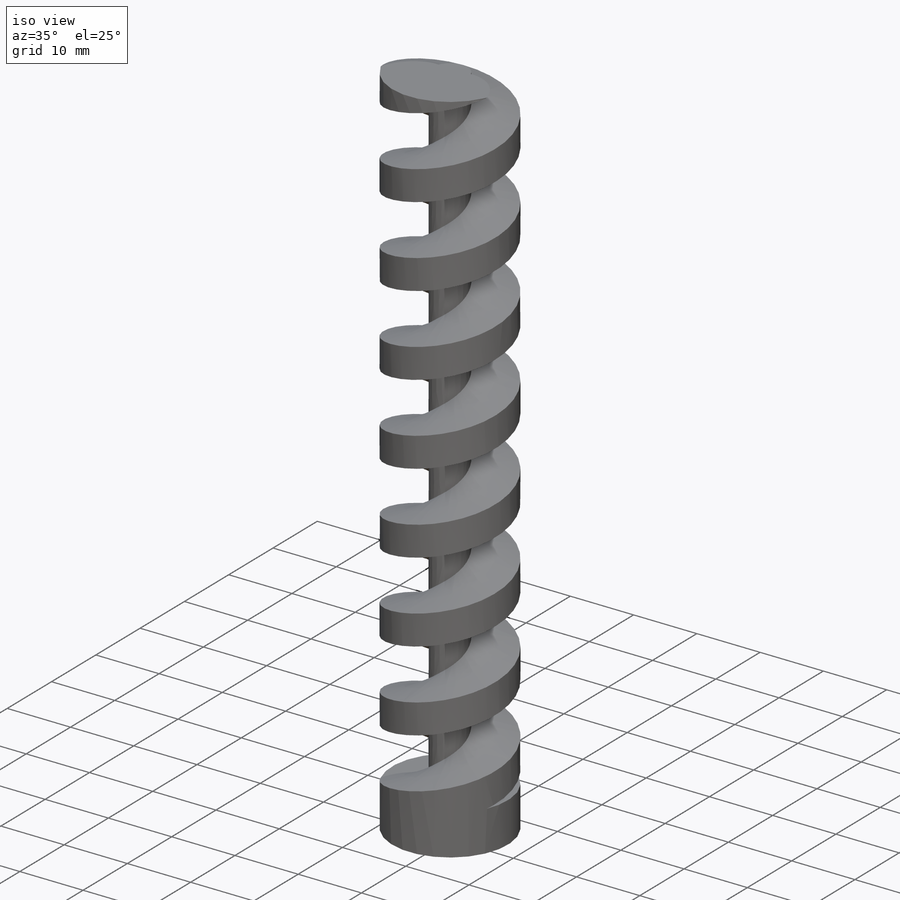
[diagram: iso view]
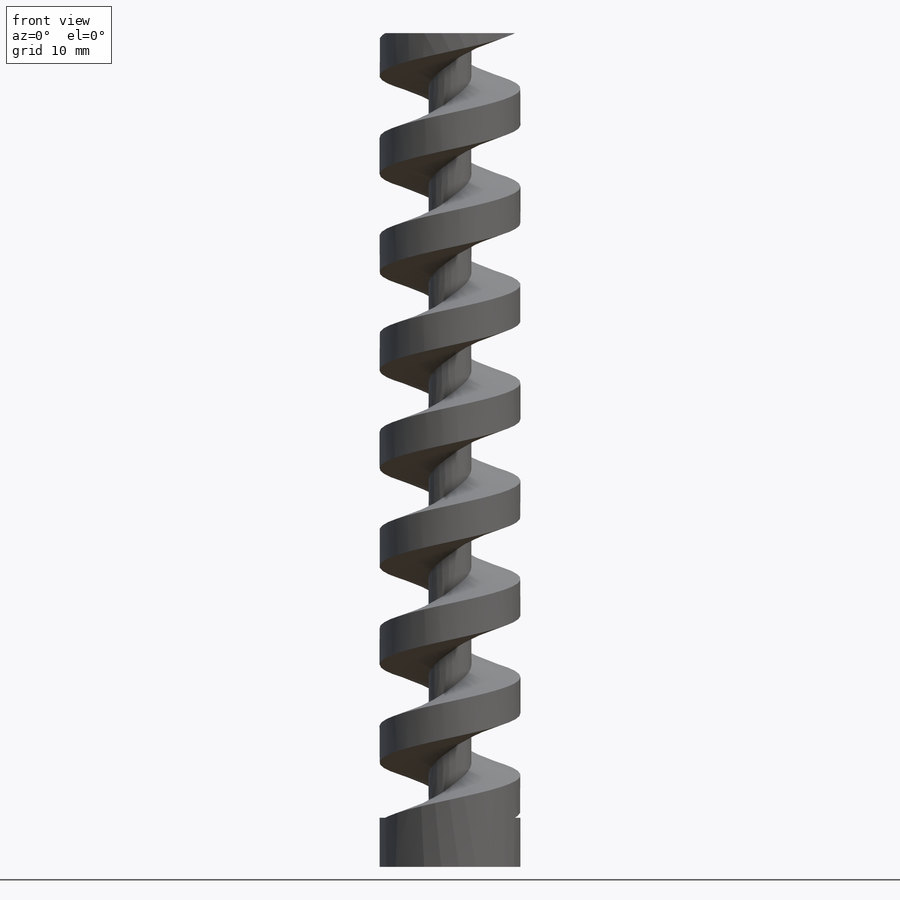
[diagram: front view]
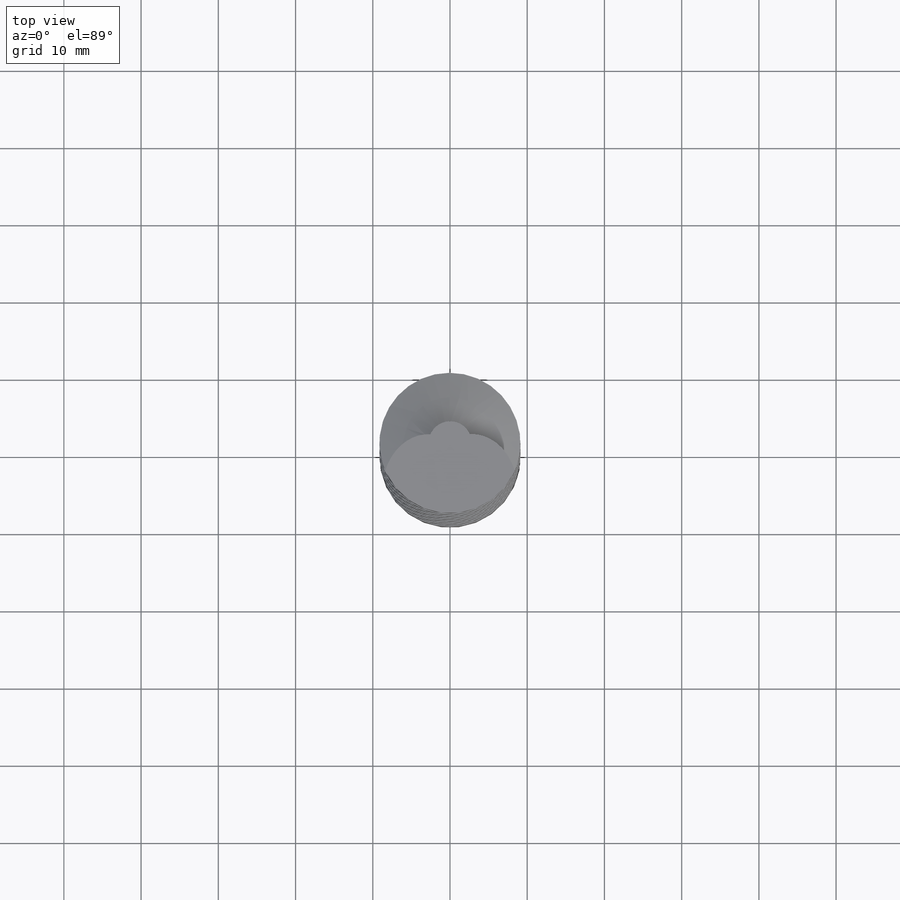
[diagram: top view]
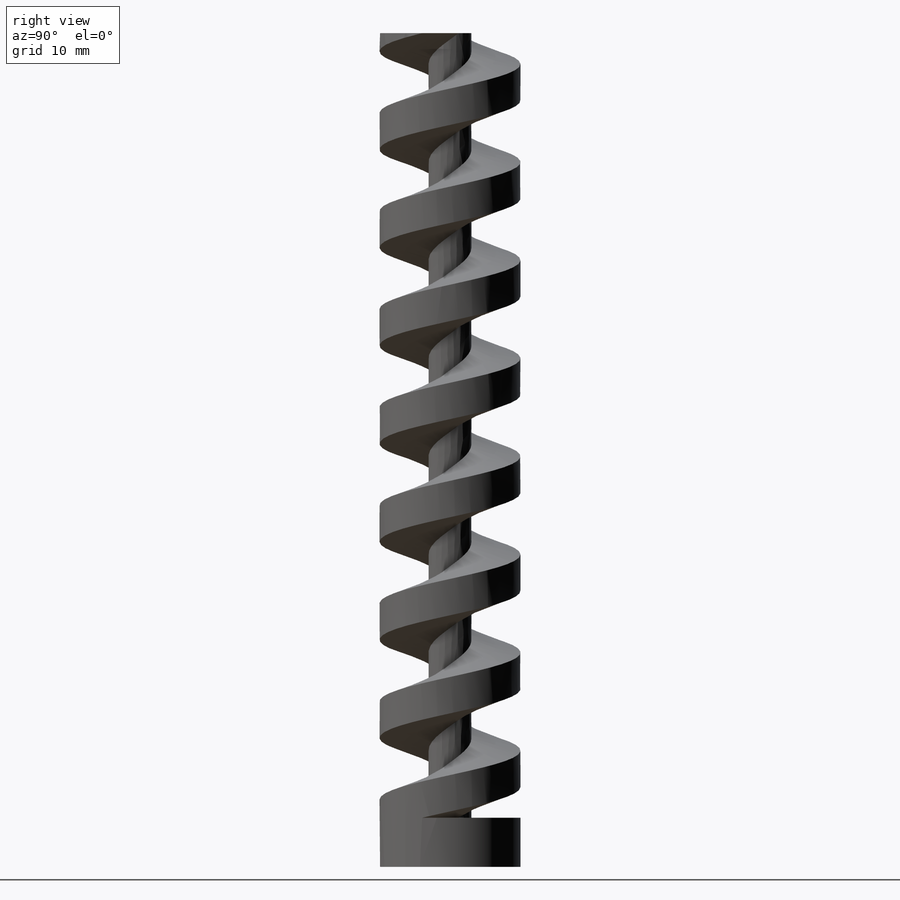
[diagram: right view]
SOLIDWORKS PART (.sldprt)
format: sldprt  version: not decoded by parser v0  size: 407,040 bytes
history: native  units: mm
features: sketch x6, extrude x3, material x1, helix x1, sweep x1, cut_extrude x1 (+12 scaffold rows collapsed)
feature tree (25):
  scaffold x12  (default folders/planes/origin — collapsed)
  material  "Material <not specified>"
  sketch  "Sketch1"  dims[D1=~18.25625mm D2=4.7625mm]
  extrude  "Boss-Extrude1"  Depth=9.525mm
  extrude  "Boss-Extrude2"  [1 undecoded]
  sketch  "Sketch1<3>"  dims[D1=101.6mm]
  sketch  "Sketch4"  dims[c1.D1=6.35mm c1.D2=1.7145mm c1.D3=~0.79375mm c1.D4=~0.79375mm c2.D3=1.27mm c3.D3=71.0deg c4.D3=~0.79375mm c4.D4=~0.79375mm c4.D5=~3.073702mm c5.D5=29.0deg c5.D2=3.175mm c6.D2=29.0deg c7.D2=3.175mm c8.D2=29.0deg c8.D3=~4.70789mm c8.D4=~1.190625mm c8.D5=~3.996055mm c8.D6=13.843mm c9.D4=~2.353945mm c9.D6=~3.996278mm]
  sketch  "Sketch5"
  helix  "Helix/Spiral1"  Pitch=127mm
  sweep  "Cut-Sweep2"
  sketch  "Sketch6"  dims[D1=~18.25625mm]
  extrude  "Boss-Extrude3"  Depth=6.35mm
  sketch  "Sketch2"  dims[D1=5.0mm D2=3.0mm D3=1.5mm]
  cut_extrude  "Cut-Extrude1"  Depth=5.55625mm
decode coverage: 9 of 12 modeling features carry decoded parameters
note: ~ marks probable driven/reference dimensions
note: 1 parameter value undecoded
note: suppression state not decoded; provenance and decode notes live in map.json
